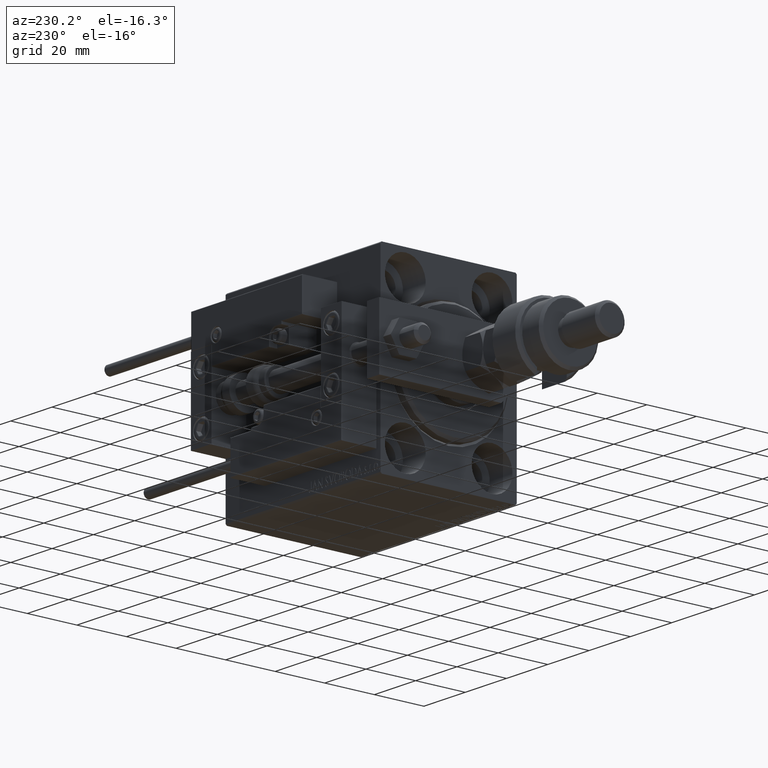
[diagram: clean part render]
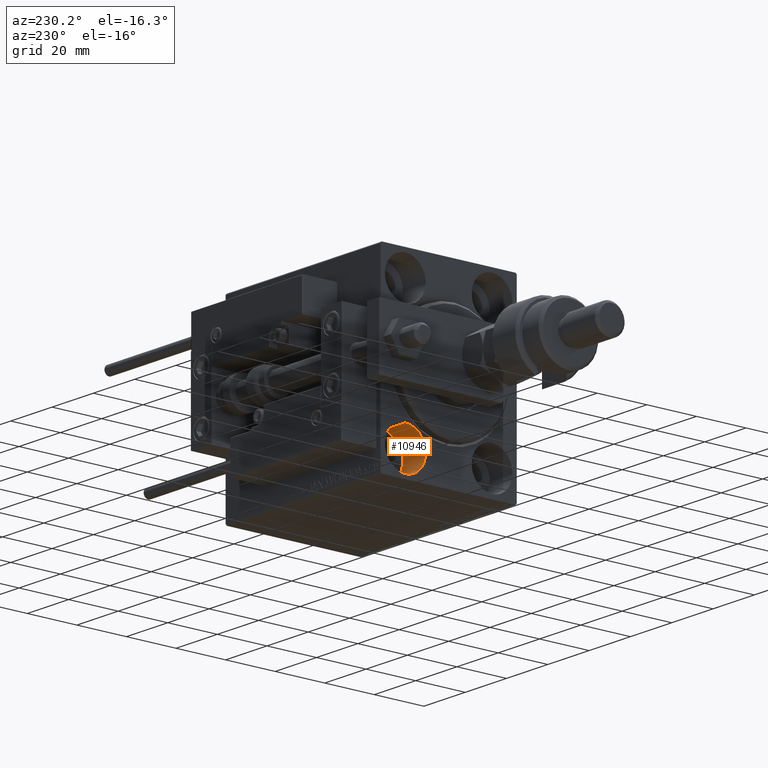
[diagram: same view with one face highlighted and labeled with its STEP entity id]
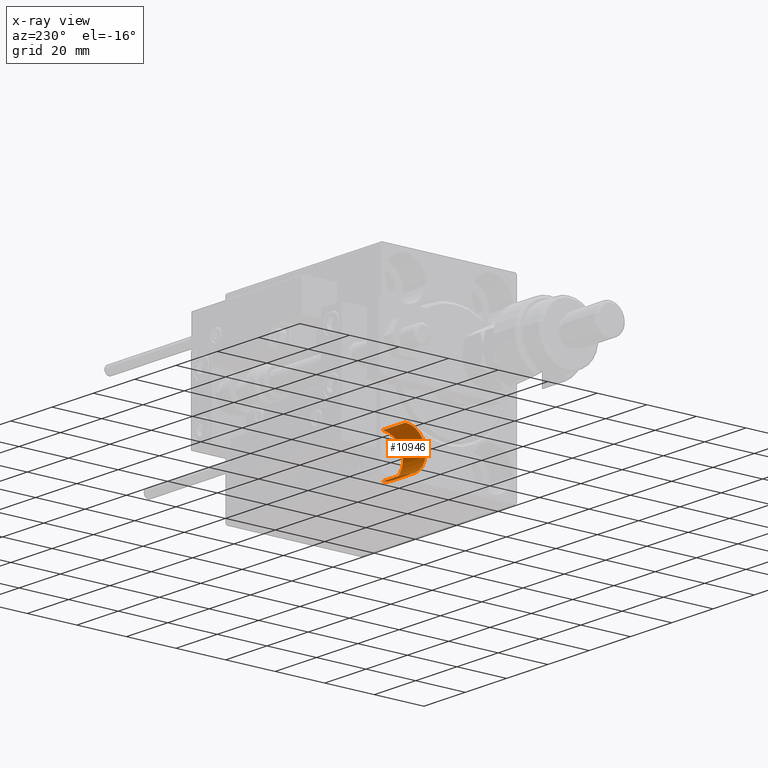
[diagram: x-ray of the same camera — body ghosted, the highlighted face saturated]
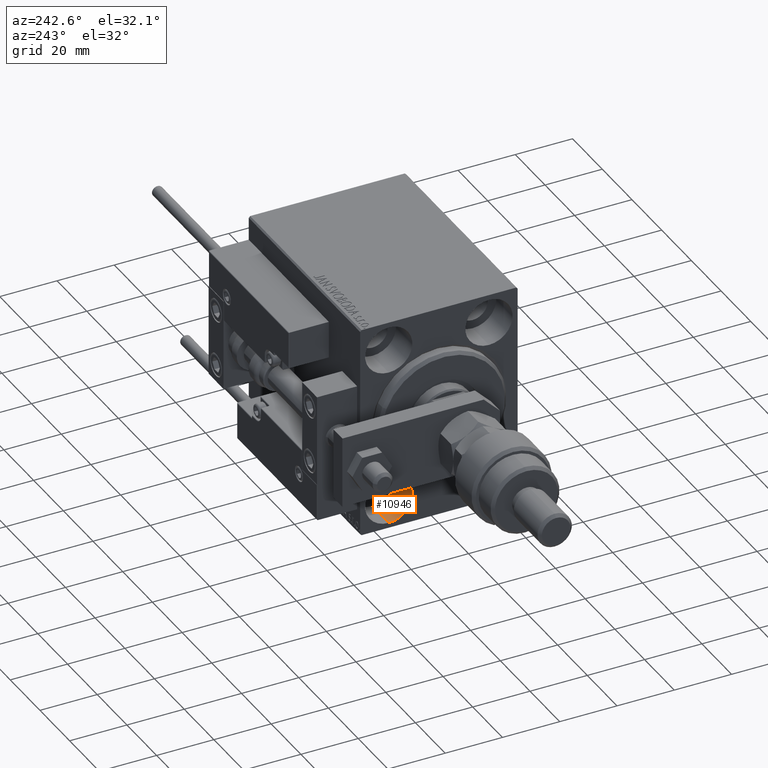
[diagram: same view with one face highlighted and labeled with its STEP entity id]
A machine part, auxiliary view. The second image highlights one B-rep face of the part: STEP entity #10946.
The next image is the same camera in x-ray: the body ghosted, the highlighted face saturated — about 0% of this face is hidden behind the body in this view.
A second angle (auxiliary view) of the same face is appended — the face is thin or edge-on in the first view.
In plain terms, the highlighted cylindrical surface (edge-blend (fillet) strip) has radius 8.25 mm, axis along (-1, -0, -0).
Its self-contained STEP definition (entity closure, byte-faithful):
#3174 = ORIENTED_EDGE ( 'NONE', *, *, #44490, .T. ) ;
#3336 = CARTESIAN_POINT ( 'NONE',  ( 11.00000000000000000, 17.49999999999999645, -35.75000000000000711 ) ) ;
#5380 = VERTEX_POINT ( 'NONE', #3336 ) ;
#6150 = VECTOR ( 'NONE', #26492, 1000.000000000000000 ) ;
#8047 = AXIS2_PLACEMENT_3D ( 'NONE', #46656, #9343, #10134 ) ;
#9343 = DIRECTION ( 'NONE',  ( -1.000000000000000000, 0.000000000000000000, 0.000000000000000000 ) ) ;
#10134 = DIRECTION ( 'NONE',  ( 0.000000000000000000, 0.000000000000000000, 1.000000000000000000 ) ) ;
#10946 = ADVANCED_FACE ( 'NONE', ( #22330 ), #46861, .F. ) ;
#11482 = EDGE_CURVE ( 'NONE', #18722, #23443, #40652, .T. ) ;
#14342 = CARTESIAN_POINT ( 'NONE',  ( 0.000000000000000000, 17.49999999999999645, -19.25000000000000355 ) ) ;
#14792 = DIRECTION ( 'NONE',  ( -1.000000000000000000, 0.000000000000000000, 0.000000000000000000 ) ) ;
#16117 = DIRECTION ( 'NONE',  ( -1.000000000000000000, -0.000000000000000000, -0.000000000000000000 ) ) ;
#17276 = CARTESIAN_POINT ( 'NONE',  ( 11.00000000000000000, 17.49999999999999645, -27.50000000000000355 ) ) ;
#17533 = DIRECTION ( 'NONE',  ( 0.000000000000000000, 0.000000000000000000, 1.000000000000000000 ) ) ;
#18722 = VERTEX_POINT ( 'NONE', #32389 ) ;
#22330 = FACE_OUTER_BOUND ( 'NONE', #42510, .T. ) ;
#22590 = DIRECTION ( 'NONE',  ( -1.000000000000000000, -0.000000000000000000, -0.000000000000000000 ) ) ;
#22844 = ORIENTED_EDGE ( 'NONE', *, *, #32784, .T. ) ;
#23443 = VERTEX_POINT ( 'NONE', #14342 ) ;
#24526 = CIRCLE ( 'NONE', #47533, 8.250000000000000000 ) ;
#24719 = VECTOR ( 'NONE', #16117, 1000.000000000000000 ) ;
#26492 = DIRECTION ( 'NONE',  ( -1.000000000000000000, -0.000000000000000000, -0.000000000000000000 ) ) ;
#28623 = VERTEX_POINT ( 'NONE', #31352 ) ;
#30801 = CARTESIAN_POINT ( 'NONE',  ( 11.00000000000000000, 17.49999999999999645, -27.50000000000000355 ) ) ;
#31352 = CARTESIAN_POINT ( 'NONE',  ( 0.000000000000000000, 17.49999999999999645, -35.75000000000000711 ) ) ;
#32389 = CARTESIAN_POINT ( 'NONE',  ( 11.00000000000000000, 17.49999999999999645, -19.25000000000000355 ) ) ;
#32784 = EDGE_CURVE ( 'NONE', #5380, #28623, #49966, .T. ) ;
#37827 = ORIENTED_EDGE ( 'NONE', *, *, #11482, .F. ) ;
#39249 = AXIS2_PLACEMENT_3D ( 'NONE', #17276, #22590, #17533 ) ;
#40652 = LINE ( 'NONE', #44636, #24719 ) ;
#42479 = CARTESIAN_POINT ( 'NONE',  ( 11.00000000000000000, 17.49999999999999645, -35.75000000000000711 ) ) ;
#42510 = EDGE_LOOP ( 'NONE', ( #45047, #22844, #3174, #37827 ) ) ;
#44490 = EDGE_CURVE ( 'NONE', #28623, #23443, #48932, .T. ) ;
#44636 = CARTESIAN_POINT ( 'NONE',  ( 11.00000000000000000, 17.49999999999999645, -19.25000000000000355 ) ) ;
#45047 = ORIENTED_EDGE ( 'NONE', *, *, #52219, .F. ) ;
#46656 = CARTESIAN_POINT ( 'NONE',  ( 0.000000000000000000, 17.49999999999999645, -27.50000000000000355 ) ) ;
#46861 = CYLINDRICAL_SURFACE ( 'NONE', #39249, 8.250000000000000000 ) ;
#47060 = DIRECTION ( 'NONE',  ( 0.000000000000000000, 0.000000000000000000, 1.000000000000000000 ) ) ;
#47533 = AXIS2_PLACEMENT_3D ( 'NONE', #30801, #14792, #47060 ) ;
#48932 = CIRCLE ( 'NONE', #8047, 8.250000000000000000 ) ;
#49966 = LINE ( 'NONE', #42479, #6150 ) ;
#52219 = EDGE_CURVE ( 'NONE', #5380, #18722, #24526, .T. ) ;